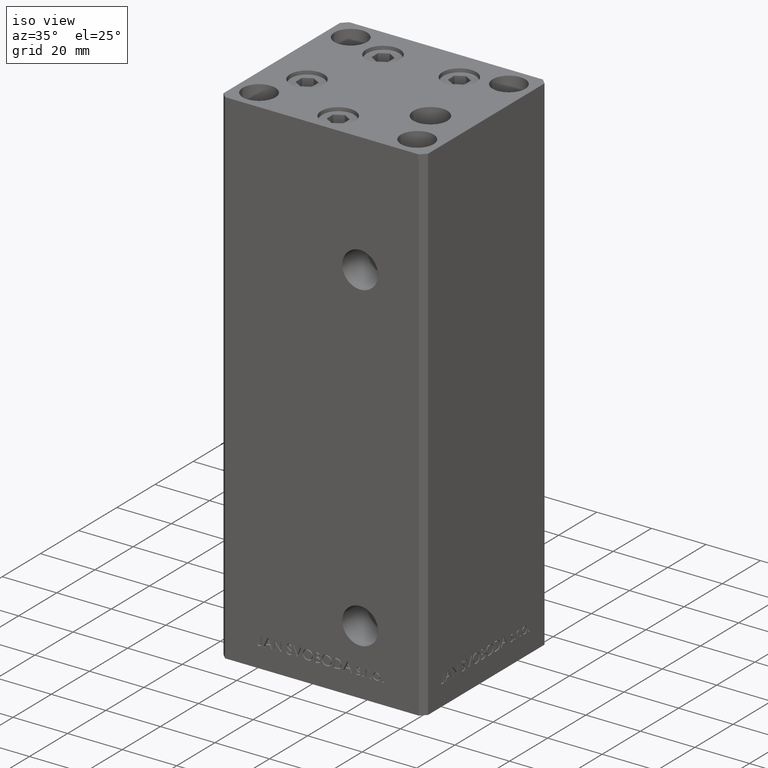
[diagram: clean part render]
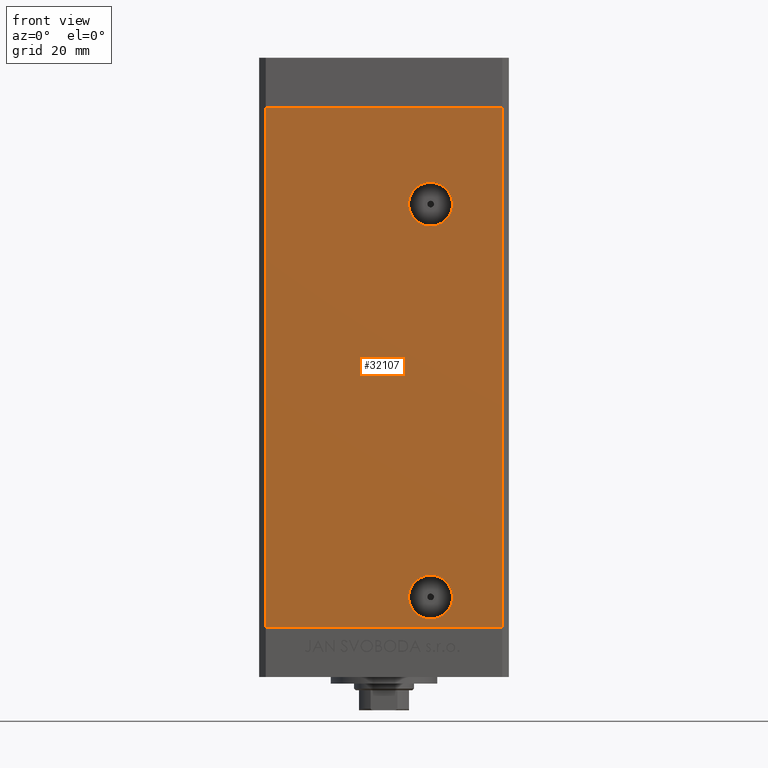
[diagram: tour spotlight — one face highlighted and labeled with its STEP entity id]
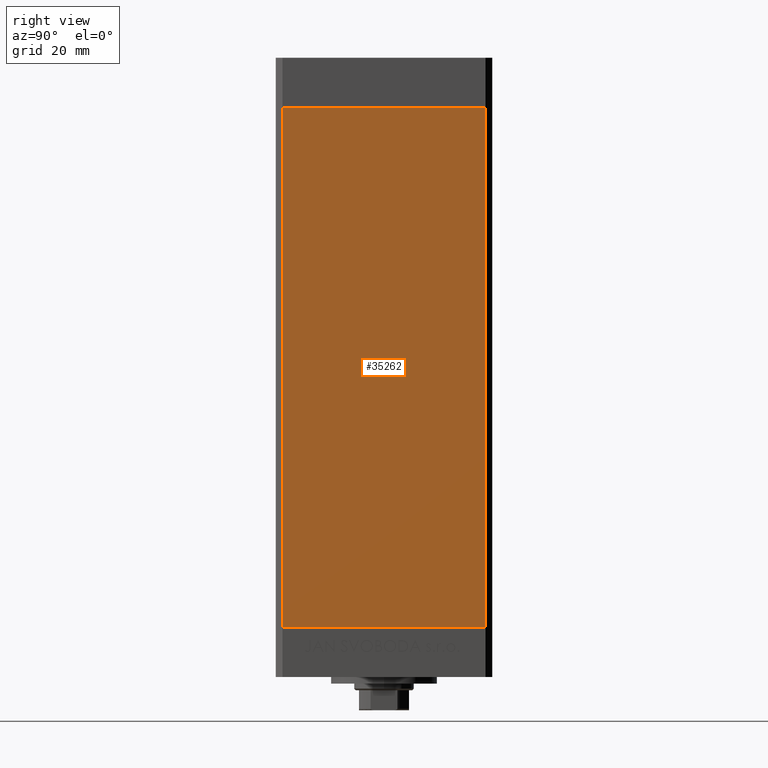
[diagram: tour spotlight — one face highlighted and labeled with its STEP entity id]
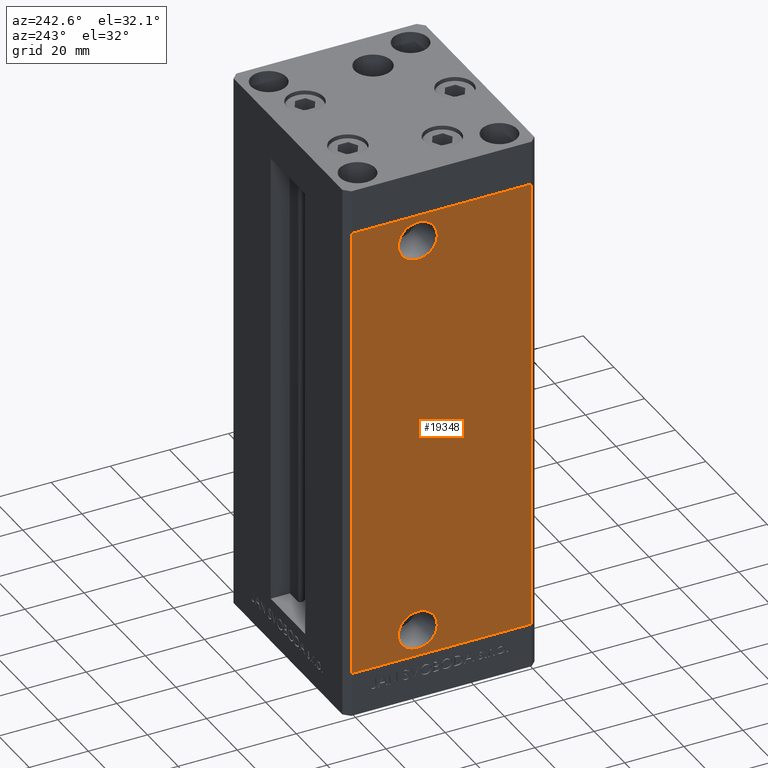
[diagram: tour spotlight — one face highlighted and labeled with its STEP entity id]
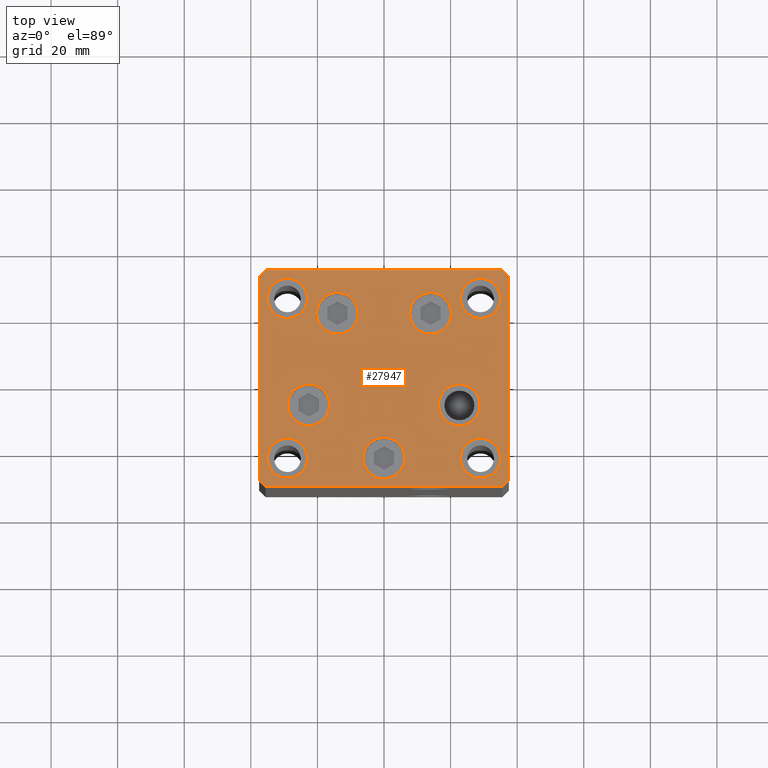
[diagram: tour spotlight — one face highlighted and labeled with its STEP entity id]
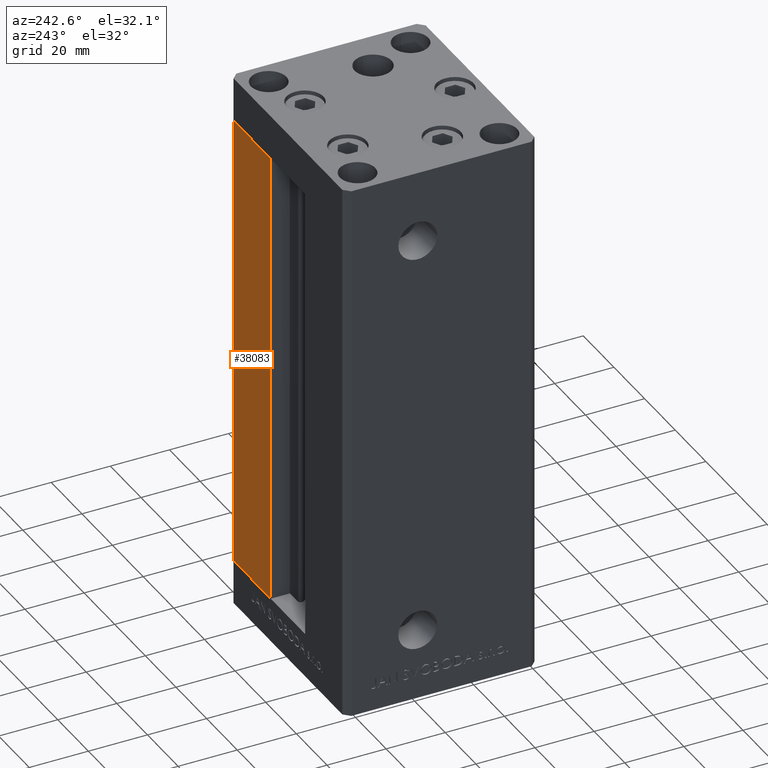
[diagram: tour spotlight — one face highlighted and labeled with its STEP entity id]
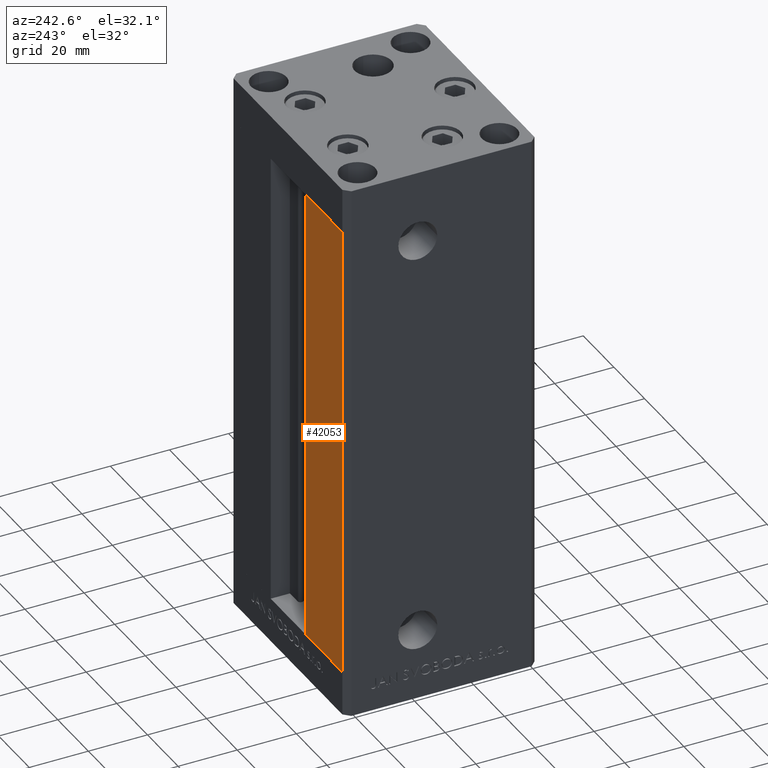
[diagram: tour spotlight — one face highlighted and labeled with its STEP entity id]
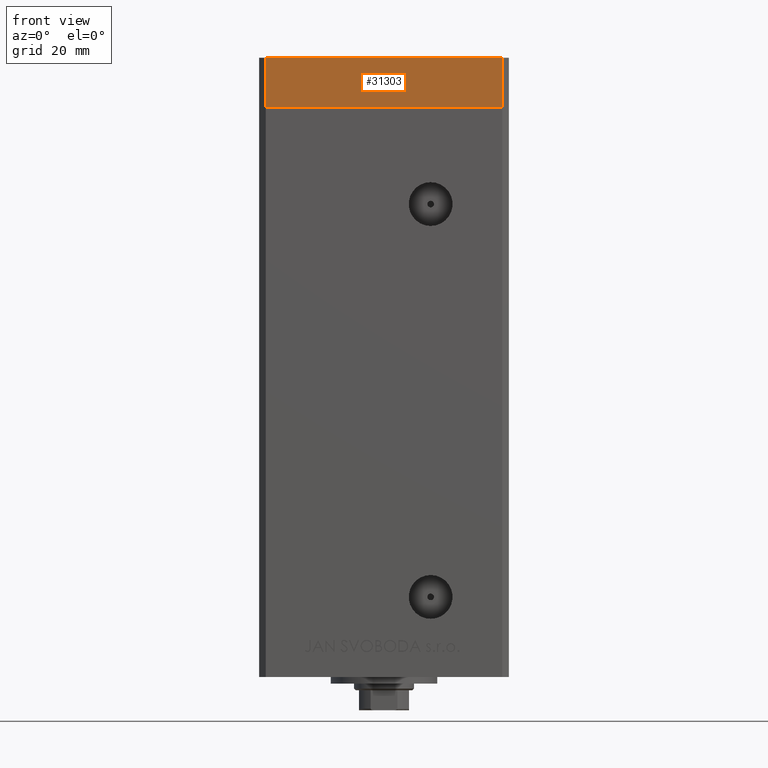
[diagram: tour spotlight — one face highlighted and labeled with its STEP entity id]
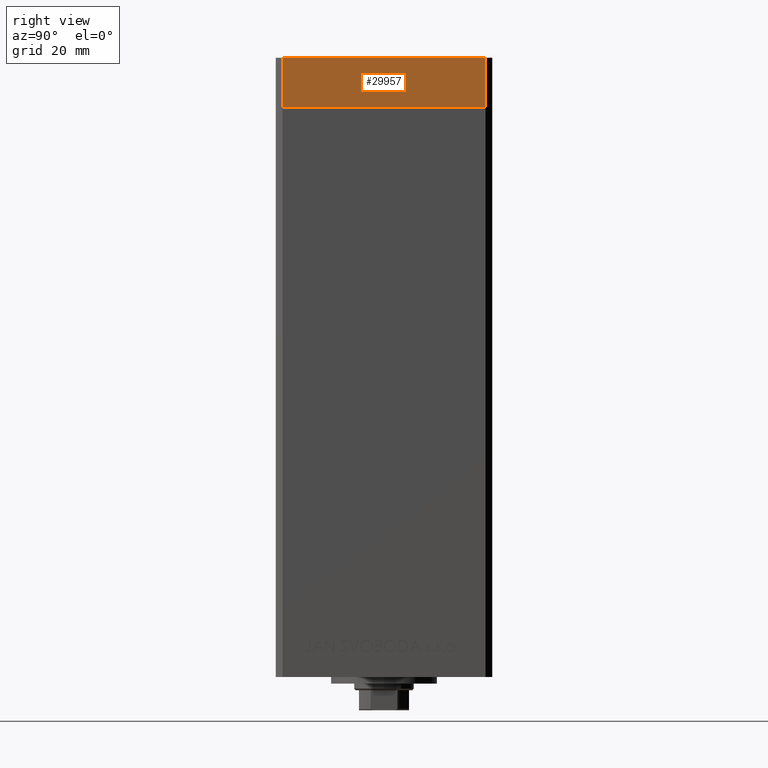
[diagram: tour spotlight — one face highlighted and labeled with its STEP entity id]
A machine part: a face-by-face anatomy tour. The part has 1179 B-rep faces; the first image is the clean iso view, then the 8 largest visible faces are spotlighted one at a time (largest first), each with its STEP entity span.

Face 1 — front view, entity #32107. In plain terms, the highlighted planar face has unit normal (0, 1, 0).
Definition (entity closure, byte-faithful):
#347 = DIRECTION ( 'NONE',  ( 1.000000000000000000, 0.000000000000000000, 0.000000000000000000 ) ) ;
#460 = VERTEX_POINT ( 'NONE', #21882 ) ;
#832 = VERTEX_POINT ( 'NONE', #2855 ) ;
#976 = EDGE_CURVE ( 'NONE', #37845, #25198, #21447, .T. ) ;
#1834 = ORIENTED_EDGE ( 'NONE', *, *, #29256, .F. ) ;
#2855 = CARTESIAN_POINT ( 'NONE',  ( 13.99999999999999112, -32.50000000000000000, 133.5800000000000125 ) ) ;
#3444 = CARTESIAN_POINT ( 'NONE',  ( 13.99999999999999112, -32.50000000000000000, 127.0000000000000000 ) ) ;
#4203 = AXIS2_PLACEMENT_3D ( 'NONE', #30937, #23134, #46517 ) ;
#4293 = DIRECTION ( 'NONE',  ( 0.000000000000000000, 1.000000000000000000, 0.000000000000000000 ) ) ;
#4713 = DIRECTION ( 'NONE',  ( 0.000000000000000000, 0.000000000000000000, -1.000000000000000000 ) ) ;
#4869 = LINE ( 'NONE', #38564, #26534 ) ;
#7868 = ORIENTED_EDGE ( 'NONE', *, *, #19832, .T. ) ;
#8997 = CARTESIAN_POINT ( 'NONE',  ( -35.49999999999999289, -32.50000000000000000, 156.0000000000000000 ) ) ;
#9189 = EDGE_CURVE ( 'NONE', #460, #37845, #46716, .T. ) ;
#11572 = EDGE_LOOP ( 'NONE', ( #41562, #46360, #15956, #47047 ) ) ;
#11581 = FACE_BOUND ( 'NONE', #16352, .T. ) ;
#12497 = DIRECTION ( 'NONE',  ( -0.000000000000000000, 1.000000000000000000, -0.000000000000000000 ) ) ;
#12526 = DIRECTION ( 'NONE',  ( -0.000000000000000000, -0.000000000000000000, -1.000000000000000000 ) ) ;
#12992 = CARTESIAN_POINT ( 'NONE',  ( 13.99999999999999112, -32.50000000000000000, 127.0000000000000000 ) ) ;
#14637 = DIRECTION ( 'NONE',  ( 0.000000000000000000, 0.000000000000000000, -1.000000000000000000 ) ) ;
#14728 = CARTESIAN_POINT ( 'NONE',  ( 13.99999999999999112, -32.50000000000000000, 120.4200000000000017 ) ) ;
#14761 = VERTEX_POINT ( 'NONE', #43666 ) ;
#15587 = VECTOR ( 'NONE', #347, 1000.000000000000000 ) ;
#15598 = FACE_BOUND ( 'NONE', #31224, .T. ) ;
#15771 = EDGE_CURVE ( 'NONE', #832, #19957, #36778, .T. ) ;
#15956 = ORIENTED_EDGE ( 'NONE', *, *, #26314, .F. ) ;
#16352 = EDGE_LOOP ( 'NONE', ( #1834, #37832 ) ) ;
#16735 = ORIENTED_EDGE ( 'NONE', *, *, #15771, .T. ) ;
#16850 = CARTESIAN_POINT ( 'NONE',  ( 35.49999999999999289, -32.50000000000000000, 0.000000000000000000 ) ) ;
#17694 = CARTESIAN_POINT ( 'NONE',  ( -35.49999999999999289, -32.50000000000000000, 0.000000000000000000 ) ) ;
#19452 = DIRECTION ( 'NONE',  ( 1.000000000000000000, 0.000000000000000000, 0.000000000000000000 ) ) ;
#19832 = EDGE_CURVE ( 'NONE', #19957, #832, #36885, .T. ) ;
#19957 = VERTEX_POINT ( 'NONE', #14728 ) ;
#20276 = VERTEX_POINT ( 'NONE', #47739 ) ;
#21404 = VECTOR ( 'NONE', #12526, 1000.000000000000000 ) ;
#21447 = LINE ( 'NONE', #17694, #15587 ) ;
#21542 = VECTOR ( 'NONE', #38166, 1000.000000000000000 ) ;
#21882 = CARTESIAN_POINT ( 'NONE',  ( -35.49999999999999289, -32.50000000000000000, 156.0000000000000000 ) ) ;
#23124 = DIRECTION ( 'NONE',  ( 0.000000000000000000, -0.000000000000000000, 1.000000000000000000 ) ) ;
#23134 = DIRECTION ( 'NONE',  ( 0.000000000000000000, -1.000000000000000000, 0.000000000000000000 ) ) ;
#25198 = VERTEX_POINT ( 'NONE', #16850 ) ;
#26314 = EDGE_CURVE ( 'NONE', #460, #40654, #4869, .T. ) ;
#26534 = VECTOR ( 'NONE', #19452, 1000.000000000000000 ) ;
#26597 = LINE ( 'NONE', #30378, #21542 ) ;
#27028 = CARTESIAN_POINT ( 'NONE',  ( 35.49999999999999289, -32.50000000000000000, 156.0000000000000000 ) ) ;
#28042 = AXIS2_PLACEMENT_3D ( 'NONE', #12992, #12497, #4713 ) ;
#29256 = EDGE_CURVE ( 'NONE', #14761, #20276, #44339, .T. ) ;
#30378 = CARTESIAN_POINT ( 'NONE',  ( 35.49999999999999289, -32.50000000000000000, 156.0000000000000000 ) ) ;
#30391 = AXIS2_PLACEMENT_3D ( 'NONE', #45303, #45557, #14637 ) ;
#30937 = CARTESIAN_POINT ( 'NONE',  ( 13.99999999999999112, -32.50000000000000000, 9.000000000000007105 ) ) ;
#31224 = EDGE_LOOP ( 'NONE', ( #7868, #16735 ) ) ;
#32107 = ADVANCED_FACE ( 'NONE', ( #11581, #46507, #15598 ), #42000, .F. ) ;
#34236 = CARTESIAN_POINT ( 'NONE',  ( -35.49999999999999289, -32.50000000000000000, 0.000000000000000000 ) ) ;
#36778 = CIRCLE ( 'NONE', #40004, 6.580000000000002736 ) ;
#36885 = CIRCLE ( 'NONE', #28042, 6.580000000000002736 ) ;
#37832 = ORIENTED_EDGE ( 'NONE', *, *, #45344, .F. ) ;
#37845 = VERTEX_POINT ( 'NONE', #34236 ) ;
#38166 = DIRECTION ( 'NONE',  ( -0.000000000000000000, -0.000000000000000000, -1.000000000000000000 ) ) ;
#38564 = CARTESIAN_POINT ( 'NONE',  ( -35.49999999999999289, -32.50000000000000000, 156.0000000000000000 ) ) ;
#38617 = DIRECTION ( 'NONE',  ( 0.000000000000000000, 0.000000000000000000, -1.000000000000000000 ) ) ;
#38887 = AXIS2_PLACEMENT_3D ( 'NONE', #42248, #4293, #23124 ) ;
#40004 = AXIS2_PLACEMENT_3D ( 'NONE', #3444, #46157, #38617 ) ;
#40654 = VERTEX_POINT ( 'NONE', #27028 ) ;
#41562 = ORIENTED_EDGE ( 'NONE', *, *, #976, .T. ) ;
#42000 = PLANE ( 'NONE',  #38887 ) ;
#42248 = CARTESIAN_POINT ( 'NONE',  ( -35.49999999999999289, -32.50000000000000000, 156.0000000000000000 ) ) ;
#42443 = CIRCLE ( 'NONE', #30391, 6.579999999999998295 ) ;
#42820 = EDGE_CURVE ( 'NONE', #40654, #25198, #26597, .T. ) ;
#43666 = CARTESIAN_POINT ( 'NONE',  ( 13.99999999999999112, -32.50000000000000000, 2.420000000000009699 ) ) ;
#44339 = CIRCLE ( 'NONE', #4203, 6.579999999999998295 ) ;
#45303 = CARTESIAN_POINT ( 'NONE',  ( 13.99999999999999112, -32.50000000000000000, 9.000000000000007105 ) ) ;
#45344 = EDGE_CURVE ( 'NONE', #20276, #14761, #42443, .T. ) ;
#45557 = DIRECTION ( 'NONE',  ( 0.000000000000000000, -1.000000000000000000, 0.000000000000000000 ) ) ;
#46157 = DIRECTION ( 'NONE',  ( -0.000000000000000000, 1.000000000000000000, -0.000000000000000000 ) ) ;
#46360 = ORIENTED_EDGE ( 'NONE', *, *, #42820, .F. ) ;
#46507 = FACE_OUTER_BOUND ( 'NONE', #11572, .T. ) ;
#46517 = DIRECTION ( 'NONE',  ( 0.000000000000000000, 0.000000000000000000, -1.000000000000000000 ) ) ;
#46716 = LINE ( 'NONE', #8997, #21404 ) ;
#47047 = ORIENTED_EDGE ( 'NONE', *, *, #9189, .T. ) ;
#47739 = CARTESIAN_POINT ( 'NONE',  ( 13.99999999999999112, -32.50000000000000000, 15.58000000000000718 ) ) ;

Face 2 — right view, entity #35262. In plain terms, the highlighted planar face has unit normal (1, -0, 0).
Definition (entity closure, byte-faithful):
#16 = EDGE_LOOP ( 'NONE', ( #34080, #22618, #6045, #27296 ) ) ;
#2001 = VERTEX_POINT ( 'NONE', #8416 ) ;
#2086 = VECTOR ( 'NONE', #10172, 1000.000000000000000 ) ;
#6045 = ORIENTED_EDGE ( 'NONE', *, *, #48051, .T. ) ;
#6652 = EDGE_CURVE ( 'NONE', #21677, #46539, #44119, .T. ) ;
#7765 = CARTESIAN_POINT ( 'NONE',  ( 37.49999999999999289, -30.50000000000000000, 156.0000000000000000 ) ) ;
#8011 = DIRECTION ( 'NONE',  ( -0.000000000000000000, -0.000000000000000000, -1.000000000000000000 ) ) ;
#8416 = CARTESIAN_POINT ( 'NONE',  ( 37.50000000000000711, 30.50000000000000000, 156.0000000000000000 ) ) ;
#8522 = DIRECTION ( 'NONE',  ( -2.275047181608927644E-16, -1.000000000000000000, 0.000000000000000000 ) ) ;
#9137 = DIRECTION ( 'NONE',  ( -0.000000000000000000, -0.000000000000000000, -1.000000000000000000 ) ) ;
#10172 = DIRECTION ( 'NONE',  ( -2.275047181608927644E-16, -1.000000000000000000, 0.000000000000000000 ) ) ;
#10360 = VECTOR ( 'NONE', #9137, 1000.000000000000000 ) ;
#13209 = DIRECTION ( 'NONE',  ( 1.000000000000000000, -2.275047181608927644E-16, 0.000000000000000000 ) ) ;
#15244 = CARTESIAN_POINT ( 'NONE',  ( 37.50000000000000711, 30.50000000000000000, 0.000000000000000000 ) ) ;
#17057 = CARTESIAN_POINT ( 'NONE',  ( 37.49999999999999289, -30.50000000000000000, 0.000000000000000000 ) ) ;
#17430 = LINE ( 'NONE', #47360, #10360 ) ;
#17637 = CARTESIAN_POINT ( 'NONE',  ( 37.49999999999999289, -30.50000000000000000, 156.0000000000000000 ) ) ;
#21232 = PLANE ( 'NONE',  #28549 ) ;
#21677 = VERTEX_POINT ( 'NONE', #15244 ) ;
#22618 = ORIENTED_EDGE ( 'NONE', *, *, #46855, .F. ) ;
#24999 = FACE_OUTER_BOUND ( 'NONE', #16, .T. ) ;
#27296 = ORIENTED_EDGE ( 'NONE', *, *, #34281, .T. ) ;
#28549 = AXIS2_PLACEMENT_3D ( 'NONE', #43630, #13209, #36578 ) ;
#29217 = VERTEX_POINT ( 'NONE', #17637 ) ;
#33549 = CARTESIAN_POINT ( 'NONE',  ( 37.50000000000000711, 30.50000000000000000, 0.000000000000000000 ) ) ;
#34080 = ORIENTED_EDGE ( 'NONE', *, *, #6652, .F. ) ;
#34281 = EDGE_CURVE ( 'NONE', #29217, #46539, #44981, .T. ) ;
#35262 = ADVANCED_FACE ( 'NONE', ( #24999 ), #21232, .T. ) ;
#36578 = DIRECTION ( 'NONE',  ( 2.275047181608927644E-16, 1.000000000000000000, 0.000000000000000000 ) ) ;
#36877 = VECTOR ( 'NONE', #8522, 1000.000000000000000 ) ;
#39183 = CARTESIAN_POINT ( 'NONE',  ( 37.50000000000000711, 30.50000000000000000, 156.0000000000000000 ) ) ;
#39749 = VECTOR ( 'NONE', #8011, 1000.000000000000000 ) ;
#42470 = LINE ( 'NONE', #39183, #36877 ) ;
#43630 = CARTESIAN_POINT ( 'NONE',  ( 37.50000000000000711, 30.50000000000000000, 156.0000000000000000 ) ) ;
#44119 = LINE ( 'NONE', #33549, #2086 ) ;
#44981 = LINE ( 'NONE', #7765, #39749 ) ;
#46539 = VERTEX_POINT ( 'NONE', #17057 ) ;
#46855 = EDGE_CURVE ( 'NONE', #2001, #21677, #17430, .T. ) ;
#47360 = CARTESIAN_POINT ( 'NONE',  ( 37.50000000000000711, 30.50000000000000000, 156.0000000000000000 ) ) ;
#48051 = EDGE_CURVE ( 'NONE', #2001, #29217, #42470, .T. ) ;

Face 3 — auxiliary view, entity #19348. In plain terms, the highlighted planar face has unit normal (1, 0, 0).
Definition (entity closure, byte-faithful):
#969 = DIRECTION ( 'NONE',  ( 0.000000000000000000, -1.000000000000000000, 0.000000000000000000 ) ) ;
#1110 = DIRECTION ( 'NONE',  ( -0.000000000000000000, -0.000000000000000000, -1.000000000000000000 ) ) ;
#1561 = VERTEX_POINT ( 'NONE', #6519 ) ;
#2123 = CARTESIAN_POINT ( 'NONE',  ( -37.50000000000000711, 30.50000000000000000, 156.0000000000000000 ) ) ;
#2382 = CARTESIAN_POINT ( 'NONE',  ( -37.50000000000000000, 7.999999999999991118, 147.0000000000000000 ) ) ;
#2891 = VERTEX_POINT ( 'NONE', #11716 ) ;
#3369 = VERTEX_POINT ( 'NONE', #7808 ) ;
#4651 = ORIENTED_EDGE ( 'NONE', *, *, #12740, .F. ) ;
#4817 = EDGE_CURVE ( 'NONE', #30054, #42766, #21261, .T. ) ;
#5248 = AXIS2_PLACEMENT_3D ( 'NONE', #32504, #47836, #10120 ) ;
#5368 = VERTEX_POINT ( 'NONE', #16561 ) ;
#6519 = CARTESIAN_POINT ( 'NONE',  ( -37.50000000000000000, 14.58000000000000718, 147.0000000000000000 ) ) ;
#7219 = AXIS2_PLACEMENT_3D ( 'NONE', #48142, #25245, #25750 ) ;
#7808 = CARTESIAN_POINT ( 'NONE',  ( -37.50000000000000711, 30.50000000000000000, 0.000000000000000000 ) ) ;
#7928 = VECTOR ( 'NONE', #8443, 1000.000000000000000 ) ;
#8443 = DIRECTION ( 'NONE',  ( -0.000000000000000000, -0.000000000000000000, -1.000000000000000000 ) ) ;
#9527 = VECTOR ( 'NONE', #45882, 1000.000000000000000 ) ;
#9935 = FACE_OUTER_BOUND ( 'NONE', #46378, .T. ) ;
#9992 = ORIENTED_EDGE ( 'NONE', *, *, #20513, .F. ) ;
#10120 = DIRECTION ( 'NONE',  ( 0.000000000000000000, -1.000000000000000000, 0.000000000000000000 ) ) ;
#10437 = FACE_BOUND ( 'NONE', #41205, .T. ) ;
#11012 = ORIENTED_EDGE ( 'NONE', *, *, #46629, .T. ) ;
#11716 = CARTESIAN_POINT ( 'NONE',  ( -37.49999999999999289, -30.50000000000000000, 0.000000000000000000 ) ) ;
#12405 = LINE ( 'NONE', #16921, #24007 ) ;
#12740 = EDGE_CURVE ( 'NONE', #42766, #30054, #29441, .T. ) ;
#13681 = LINE ( 'NONE', #2123, #19053 ) ;
#13938 = DIRECTION ( 'NONE',  ( -1.000000000000000000, -2.275047181608927644E-16, 0.000000000000000000 ) ) ;
#15187 = CARTESIAN_POINT ( 'NONE',  ( -37.50000000000000000, 1.419999999999975948, 147.0000000000000000 ) ) ;
#15750 = CIRCLE ( 'NONE', #43050, 6.580000000000015170 ) ;
#16561 = CARTESIAN_POINT ( 'NONE',  ( -37.50000000000000711, 30.50000000000000000, 156.0000000000000000 ) ) ;
#16864 = CIRCLE ( 'NONE', #21647, 6.580000000000015170 ) ;
#16919 = EDGE_CURVE ( 'NONE', #5368, #3369, #42882, .T. ) ;
#16921 = CARTESIAN_POINT ( 'NONE',  ( -37.49999999999999289, -30.50000000000000000, 156.0000000000000000 ) ) ;
#17377 = EDGE_LOOP ( 'NONE', ( #4651, #48166 ) ) ;
#17812 = VERTEX_POINT ( 'NONE', #15187 ) ;
#19053 = VECTOR ( 'NONE', #33532, 1000.000000000000000 ) ;
#19348 = ADVANCED_FACE ( 'NONE', ( #25496, #10437, #9935 ), #25997, .F. ) ;
#19952 = CARTESIAN_POINT ( 'NONE',  ( -37.50000000000000711, 30.50000000000000000, 0.000000000000000000 ) ) ;
#20036 = CARTESIAN_POINT ( 'NONE',  ( -37.50000000000000000, 7.999999999999991118, 147.0000000000000000 ) ) ;
#20513 = EDGE_CURVE ( 'NONE', #1561, #17812, #16864, .T. ) ;
#21261 = CIRCLE ( 'NONE', #5248, 6.580000000000002736 ) ;
#21647 = AXIS2_PLACEMENT_3D ( 'NONE', #20036, #43166, #969 ) ;
#24004 = CARTESIAN_POINT ( 'NONE',  ( -37.50000000000000711, 30.50000000000000000, 156.0000000000000000 ) ) ;
#24007 = VECTOR ( 'NONE', #1110, 1000.000000000000000 ) ;
#25131 = ORIENTED_EDGE ( 'NONE', *, *, #39557, .F. ) ;
#25245 = DIRECTION ( 'NONE',  ( 1.000000000000000000, 2.275047181608927644E-16, -0.000000000000000000 ) ) ;
#25496 = FACE_BOUND ( 'NONE', #17377, .T. ) ;
#25750 = DIRECTION ( 'NONE',  ( -2.275047181608927644E-16, 1.000000000000000000, 0.000000000000000000 ) ) ;
#25997 = PLANE ( 'NONE',  #7219 ) ;
#29257 = DIRECTION ( 'NONE',  ( 0.000000000000000000, -1.000000000000000000, 0.000000000000000000 ) ) ;
#29441 = CIRCLE ( 'NONE', #46325, 6.580000000000002736 ) ;
#30054 = VERTEX_POINT ( 'NONE', #37301 ) ;
#30545 = LINE ( 'NONE', #19952, #9527 ) ;
#31218 = DIRECTION ( 'NONE',  ( -1.000000000000000000, -2.275047181608927644E-16, 0.000000000000000000 ) ) ;
#32504 = CARTESIAN_POINT ( 'NONE',  ( -37.50000000000000000, 7.999999999999977796, 9.000000000000007105 ) ) ;
#32733 = CARTESIAN_POINT ( 'NONE',  ( -37.49999999999999289, -30.50000000000000000, 156.0000000000000000 ) ) ;
#33532 = DIRECTION ( 'NONE',  ( 2.275047181608927644E-16, -1.000000000000000000, 0.000000000000000000 ) ) ;
#33654 = CARTESIAN_POINT ( 'NONE',  ( -37.50000000000000000, 1.419999999999975060, 9.000000000000007105 ) ) ;
#37301 = CARTESIAN_POINT ( 'NONE',  ( -37.50000000000000000, 14.57999999999998053, 9.000000000000007105 ) ) ;
#37443 = EDGE_CURVE ( 'NONE', #17812, #1561, #15750, .T. ) ;
#37682 = VERTEX_POINT ( 'NONE', #32733 ) ;
#39557 = EDGE_CURVE ( 'NONE', #5368, #37682, #13681, .T. ) ;
#40923 = ORIENTED_EDGE ( 'NONE', *, *, #45104, .F. ) ;
#40939 = ORIENTED_EDGE ( 'NONE', *, *, #37443, .F. ) ;
#41205 = EDGE_LOOP ( 'NONE', ( #40939, #9992 ) ) ;
#42766 = VERTEX_POINT ( 'NONE', #33654 ) ;
#42777 = ORIENTED_EDGE ( 'NONE', *, *, #16919, .T. ) ;
#42778 = DIRECTION ( 'NONE',  ( 0.000000000000000000, -1.000000000000000000, 0.000000000000000000 ) ) ;
#42882 = LINE ( 'NONE', #24004, #7928 ) ;
#43050 = AXIS2_PLACEMENT_3D ( 'NONE', #2382, #13938, #29257 ) ;
#43166 = DIRECTION ( 'NONE',  ( -1.000000000000000000, -2.275047181608927644E-16, 0.000000000000000000 ) ) ;
#45104 = EDGE_CURVE ( 'NONE', #37682, #2891, #12405, .T. ) ;
#45882 = DIRECTION ( 'NONE',  ( 2.275047181608927644E-16, -1.000000000000000000, 0.000000000000000000 ) ) ;
#46325 = AXIS2_PLACEMENT_3D ( 'NONE', #49320, #31218, #42778 ) ;
#46378 = EDGE_LOOP ( 'NONE', ( #11012, #40923, #25131, #42777 ) ) ;
#46629 = EDGE_CURVE ( 'NONE', #3369, #2891, #30545, .T. ) ;
#47836 = DIRECTION ( 'NONE',  ( -1.000000000000000000, -2.275047181608927644E-16, 0.000000000000000000 ) ) ;
#48142 = CARTESIAN_POINT ( 'NONE',  ( -37.50000000000000711, 30.50000000000000000, 156.0000000000000000 ) ) ;
#48166 = ORIENTED_EDGE ( 'NONE', *, *, #4817, .F. ) ;
#49320 = CARTESIAN_POINT ( 'NONE',  ( -37.50000000000000000, 7.999999999999977796, 9.000000000000007105 ) ) ;

Face 4 — top view, entity #27947. In plain terms, the highlighted planar face has unit normal (0, 0, 1).
Definition (entity closure, byte-faithful):
#28 = CARTESIAN_POINT ( 'NONE',  ( 35.00000000000001421, -23.99999999999999289, 0.000000000000000000 ) ) ;
#369 = VERTEX_POINT ( 'NONE', #23670 ) ;
#436 = DIRECTION ( 'NONE',  ( 0.000000000000000000, -0.000000000000000000, -1.000000000000000000 ) ) ;
#485 = CIRCLE ( 'NONE', #30179, 6.000000000000005329 ) ;
#1151 = CARTESIAN_POINT ( 'NONE',  ( -35.50000000000002842, 32.49999999999999289, 0.000000000000000000 ) ) ;
#1268 = CIRCLE ( 'NONE', #21289, 5.999999999999998224 ) ;
#1540 = ORIENTED_EDGE ( 'NONE', *, *, #10077, .T. ) ;
#1600 = DIRECTION ( 'NONE',  ( 0.000000000000000000, 0.000000000000000000, 1.000000000000000000 ) ) ;
#1819 = LINE ( 'NONE', #17141, #45135 ) ;
#2046 = CARTESIAN_POINT ( 'NONE',  ( 20.24106857963322526, 19.50000000000000000, 0.000000000000000000 ) ) ;
#2277 = LINE ( 'NONE', #48512, #7723 ) ;
#2753 = CARTESIAN_POINT ( 'NONE',  ( -37.49999999999998579, -30.50000000000001421, 0.000000000000000000 ) ) ;
#2786 = DIRECTION ( 'NONE',  ( 0.000000000000000000, -0.000000000000000000, -1.000000000000000000 ) ) ;
#2828 = CARTESIAN_POINT ( 'NONE',  ( 29.00000000000001066, 24.00000000000000711, 0.000000000000000000 ) ) ;
#3016 = CIRCLE ( 'NONE', #21436, 6.250000000000001776 ) ;
#3158 = CIRCLE ( 'NONE', #41701, 6.250000000000000000 ) ;
#3220 = FACE_OUTER_BOUND ( 'NONE', #29865, .T. ) ;
#3474 = FACE_BOUND ( 'NONE', #35842, .T. ) ;
#3542 = ORIENTED_EDGE ( 'NONE', *, *, #7334, .T. ) ;
#3588 = DIRECTION ( 'NONE',  ( 1.000000000000000000, 0.000000000000000000, 0.000000000000000000 ) ) ;
#3973 = VERTEX_POINT ( 'NONE', #23888 ) ;
#4419 = DIRECTION ( 'NONE',  ( 1.000000000000000000, 0.000000000000000000, 0.000000000000000000 ) ) ;
#4534 = DIRECTION ( 'NONE',  ( 1.000000000000000000, 9.773090005503140331E-17, 0.000000000000000000 ) ) ;
#5245 = DIRECTION ( 'NONE',  ( 1.000000000000000000, 0.000000000000000000, 0.000000000000000000 ) ) ;
#5322 = VECTOR ( 'NONE', #39042, 999.9999999999998863 ) ;
#5348 = DIRECTION ( 'NONE',  ( -0.7071067811865426878, -0.7071067811865524577, 0.000000000000000000 ) ) ;
#5576 = EDGE_LOOP ( 'NONE', ( #43787, #44696 ) ) ;
#6007 = CARTESIAN_POINT ( 'NONE',  ( -6.249999999999997335, -24.00000000000000000, 0.000000000000000000 ) ) ;
#6055 = EDGE_CURVE ( 'NONE', #44710, #14344, #10079, .T. ) ;
#6359 = CARTESIAN_POINT ( 'NONE',  ( -16.37741699796951877, -8.000000000000005329, 0.000000000000000000 ) ) ;
#6501 = PLANE ( 'NONE',  #41910 ) ;
#6730 = VERTEX_POINT ( 'NONE', #2753 ) ;
#6778 = DIRECTION ( 'NONE',  ( 0.000000000000000000, 0.000000000000000000, 1.000000000000000000 ) ) ;
#6925 = CARTESIAN_POINT ( 'NONE',  ( 29.00000000000001066, 24.00000000000000711, 0.000000000000000000 ) ) ;
#7043 = ORIENTED_EDGE ( 'NONE', *, *, #24820, .T. ) ;
#7250 = ORIENTED_EDGE ( 'NONE', *, *, #10833, .F. ) ;
#7313 = ORIENTED_EDGE ( 'NONE', *, *, #48524, .T. ) ;
#7334 = EDGE_CURVE ( 'NONE', #369, #10997, #42331, .T. ) ;
#7723 = VECTOR ( 'NONE', #21612, 1000.000000000000000 ) ;
#7816 = EDGE_CURVE ( 'NONE', #44213, #44458, #29416, .T. ) ;
#8364 = VERTEX_POINT ( 'NONE', #6359 ) ;
#8373 = CARTESIAN_POINT ( 'NONE',  ( 37.49999999999992184, 30.50000000000001066, 0.000000000000000000 ) ) ;
#8655 = EDGE_LOOP ( 'NONE', ( #19245, #45559 ) ) ;
#8693 = DIRECTION ( 'NONE',  ( 1.000000000000000000, 0.000000000000000000, 0.000000000000000000 ) ) ;
#9046 = LINE ( 'NONE', #31930, #18181 ) ;
#9472 = CARTESIAN_POINT ( 'NONE',  ( 7.741068579633223479, 19.50000000000000000, 0.000000000000000000 ) ) ;
#9699 = EDGE_CURVE ( 'NONE', #48034, #40131, #30293, .T. ) ;
#9950 = CARTESIAN_POINT ( 'NONE',  ( -20.24106857963322881, 19.49999999999999645, 0.000000000000000000 ) ) ;
#10077 = EDGE_CURVE ( 'NONE', #32547, #6730, #2277, .T. ) ;
#10079 = CIRCLE ( 'NONE', #38188, 6.250000000000000000 ) ;
#10197 = EDGE_CURVE ( 'NONE', #14344, #44710, #43846, .T. ) ;
#10354 = DIRECTION ( 'NONE',  ( -1.000000000000000000, -1.954618001100629052E-16, 0.000000000000000000 ) ) ;
#10757 = FACE_BOUND ( 'NONE', #5576, .T. ) ;
#10794 = VERTEX_POINT ( 'NONE', #45628 ) ;
#10828 = VERTEX_POINT ( 'NONE', #22737 ) ;
#10833 = EDGE_CURVE ( 'NONE', #26858, #31825, #31908, .T. ) ;
#10943 = DIRECTION ( 'NONE',  ( 0.000000000000000000, 0.000000000000000000, 1.000000000000000000 ) ) ;
#10997 = VERTEX_POINT ( 'NONE', #23955 ) ;
#11008 = FACE_BOUND ( 'NONE', #31836, .T. ) ;
#11440 = DIRECTION ( 'NONE',  ( 1.000000000000000000, 0.000000000000000000, 0.000000000000000000 ) ) ;
#11449 = DIRECTION ( 'NONE',  ( 1.000000000000000000, 0.000000000000000000, 0.000000000000000000 ) ) ;
#11848 = EDGE_CURVE ( 'NONE', #6730, #10828, #39807, .T. ) ;
#12011 = ORIENTED_EDGE ( 'NONE', *, *, #34265, .F. ) ;
#12094 = DIRECTION ( 'NONE',  ( -1.478780668045802821E-15, 1.000000000000000000, 0.000000000000000000 ) ) ;
#12984 = DIRECTION ( 'NONE',  ( 0.000000000000000000, 0.000000000000000000, 1.000000000000000000 ) ) ;
#13132 = LINE ( 'NONE', #37000, #44997 ) ;
#13570 = EDGE_CURVE ( 'NONE', #30590, #10794, #16645, .T. ) ;
#13626 = LINE ( 'NONE', #44792, #27320 ) ;
#13869 = AXIS2_PLACEMENT_3D ( 'NONE', #31126, #33925, #38432 ) ;
#13910 = DIRECTION ( 'NONE',  ( 0.7071067811865474617, -0.7071067811865474617, 0.000000000000000000 ) ) ;
#13955 = EDGE_LOOP ( 'NONE', ( #27620, #18380 ) ) ;
#14034 = CARTESIAN_POINT ( 'NONE',  ( -29.00000000000001066, -23.99999999999999289, 0.000000000000000000 ) ) ;
#14040 = VERTEX_POINT ( 'NONE', #29353 ) ;
#14344 = VERTEX_POINT ( 'NONE', #9950 ) ;
#14370 = CARTESIAN_POINT ( 'NONE',  ( 16.37741699796951877, -8.000000000000000000, 0.000000000000000000 ) ) ;
#14513 = EDGE_CURVE ( 'NONE', #20307, #42622, #48003, .T. ) ;
#14584 = CARTESIAN_POINT ( 'NONE',  ( -13.99106857963322703, 19.49999999999999645, 0.000000000000000000 ) ) ;
#14710 = CARTESIAN_POINT ( 'NONE',  ( -29.00000000000001066, 24.00000000000000711, 0.000000000000000000 ) ) ;
#15025 = FACE_BOUND ( 'NONE', #15910, .T. ) ;
#15464 = DIRECTION ( 'NONE',  ( 0.000000000000000000, -0.000000000000000000, -1.000000000000000000 ) ) ;
#15910 = EDGE_LOOP ( 'NONE', ( #19999, #30735 ) ) ;
#16219 = DIRECTION ( 'NONE',  ( 0.000000000000000000, -0.000000000000000000, -1.000000000000000000 ) ) ;
#16645 = CIRCLE ( 'NONE', #19833, 6.000000000000005329 ) ;
#16657 = CARTESIAN_POINT ( 'NONE',  ( -35.00000000000000711, -23.99999999999999289, 0.000000000000000000 ) ) ;
#16822 = ORIENTED_EDGE ( 'NONE', *, *, #49124, .F. ) ;
#17141 = CARTESIAN_POINT ( 'NONE',  ( 35.50000000000000711, -32.50000000000000711, 0.000000000000000000 ) ) ;
#18181 = VECTOR ( 'NONE', #12094, 1000.000000000000000 ) ;
#18297 = DIRECTION ( 'NONE',  ( 1.000000000000000000, 0.000000000000000000, 0.000000000000000000 ) ) ;
#18380 = ORIENTED_EDGE ( 'NONE', *, *, #13570, .F. ) ;
#19122 = CARTESIAN_POINT ( 'NONE',  ( -35.49999999999998579, -32.50000000000001421, 0.000000000000000000 ) ) ;
#19245 = ORIENTED_EDGE ( 'NONE', *, *, #30373, .T. ) ;
#19833 = AXIS2_PLACEMENT_3D ( 'NONE', #6925, #10943, #38086 ) ;
#19972 = DIRECTION ( 'NONE',  ( 1.000000000000000000, 0.000000000000000000, 0.000000000000000000 ) ) ;
#19999 = ORIENTED_EDGE ( 'NONE', *, *, #9699, .F. ) ;
#20284 = DIRECTION ( 'NONE',  ( 0.000000000000000000, -0.000000000000000000, -1.000000000000000000 ) ) ;
#20307 = VERTEX_POINT ( 'NONE', #35941 ) ;
#20406 = DIRECTION ( 'NONE',  ( 0.7071067811865487940, 0.7071067811865463515, 0.000000000000000000 ) ) ;
#20524 = ORIENTED_EDGE ( 'NONE', *, *, #27977, .F. ) ;
#20532 = EDGE_CURVE ( 'NONE', #44458, #44213, #32106, .T. ) ;
#21289 = AXIS2_PLACEMENT_3D ( 'NONE', #25857, #6778, #26359 ) ;
#21339 = CARTESIAN_POINT ( 'NONE',  ( 23.00000000000001066, -23.99999999999999289, 0.000000000000000000 ) ) ;
#21436 = AXIS2_PLACEMENT_3D ( 'NONE', #28352, #43695, #5245 ) ;
#21612 = DIRECTION ( 'NONE',  ( 4.550094363217855288E-16, -1.000000000000000000, 0.000000000000000000 ) ) ;
#22048 = FACE_BOUND ( 'NONE', #8655, .T. ) ;
#22737 = CARTESIAN_POINT ( 'NONE',  ( -35.49999999999998579, -32.50000000000001421, 0.000000000000000000 ) ) ;
#22784 = EDGE_LOOP ( 'NONE', ( #16822, #20524 ) ) ;
#22988 = VECTOR ( 'NONE', #13910, 1000.000000000000114 ) ;
#23487 = EDGE_LOOP ( 'NONE', ( #24672, #38404 ) ) ;
#23670 = CARTESIAN_POINT ( 'NONE',  ( 37.49999999999992184, 30.50000000000001066, 0.000000000000000000 ) ) ;
#23888 = CARTESIAN_POINT ( 'NONE',  ( 37.50000000000001421, -30.50000000000000711, 0.000000000000000000 ) ) ;
#23955 = CARTESIAN_POINT ( 'NONE',  ( 35.49999999999992184, 32.50000000000000711, 0.000000000000000000 ) ) ;
#24187 = CIRCLE ( 'NONE', #33874, 5.999999999999998224 ) ;
#24421 = VERTEX_POINT ( 'NONE', #1151 ) ;
#24672 = ORIENTED_EDGE ( 'NONE', *, *, #20532, .T. ) ;
#24779 = EDGE_CURVE ( 'NONE', #10997, #24421, #13626, .T. ) ;
#24794 = CIRCLE ( 'NONE', #44917, 6.250000000000001776 ) ;
#24820 = EDGE_CURVE ( 'NONE', #24421, #32547, #13132, .T. ) ;
#25067 = CARTESIAN_POINT ( 'NONE',  ( -35.00000000000000711, 24.00000000000000711, 0.000000000000000000 ) ) ;
#25232 = AXIS2_PLACEMENT_3D ( 'NONE', #27140, #27630, #46264 ) ;
#25291 = CARTESIAN_POINT ( 'NONE',  ( 23.00000000000001066, 24.00000000000000711, 0.000000000000000000 ) ) ;
#25464 = CARTESIAN_POINT ( 'NONE',  ( -28.87741699796952233, -8.000000000000005329, 0.000000000000000000 ) ) ;
#25857 = CARTESIAN_POINT ( 'NONE',  ( -29.00000000000001066, 24.00000000000000711, 0.000000000000000000 ) ) ;
#26259 = CARTESIAN_POINT ( 'NONE',  ( -22.62741699796951877, -8.000000000000005329, 0.000000000000000000 ) ) ;
#26327 = AXIS2_PLACEMENT_3D ( 'NONE', #30301, #15464, #11449 ) ;
#26359 = DIRECTION ( 'NONE',  ( 1.000000000000000000, 0.000000000000000000, 0.000000000000000000 ) ) ;
#26509 = AXIS2_PLACEMENT_3D ( 'NONE', #39396, #20284, #43426 ) ;
#26580 = CARTESIAN_POINT ( 'NONE',  ( 0.000000000000000000, 0.000000000000000000, 0.000000000000000000 ) ) ;
#26858 = VERTEX_POINT ( 'NONE', #25067 ) ;
#27140 = CARTESIAN_POINT ( 'NONE',  ( 29.00000000000001066, -23.99999999999999289, 0.000000000000000000 ) ) ;
#27199 = CARTESIAN_POINT ( 'NONE',  ( -23.00000000000001421, 24.00000000000000711, 0.000000000000000000 ) ) ;
#27255 = ORIENTED_EDGE ( 'NONE', *, *, #6055, .T. ) ;
#27320 = VECTOR ( 'NONE', #10354, 1000.000000000000000 ) ;
#27620 = ORIENTED_EDGE ( 'NONE', *, *, #35628, .F. ) ;
#27630 = DIRECTION ( 'NONE',  ( 0.000000000000000000, 0.000000000000000000, 1.000000000000000000 ) ) ;
#27807 = ORIENTED_EDGE ( 'NONE', *, *, #32117, .T. ) ;
#27947 = ADVANCED_FACE ( 'NONE', ( #33893, #22048, #30360, #10757, #3474, #15025, #45699, #11008, #48461, #3220 ), #6501, .T. ) ;
#27977 = EDGE_CURVE ( 'NONE', #44269, #29985, #24187, .T. ) ;
#28352 = CARTESIAN_POINT ( 'NONE',  ( -22.62741699796951877, -8.000000000000005329, 0.000000000000000000 ) ) ;
#28469 = DIRECTION ( 'NONE',  ( 1.000000000000000000, 0.000000000000000000, 0.000000000000000000 ) ) ;
#28707 = VERTEX_POINT ( 'NONE', #25464 ) ;
#29043 = EDGE_CURVE ( 'NONE', #14040, #3973, #1819, .T. ) ;
#29353 = CARTESIAN_POINT ( 'NONE',  ( 35.50000000000000711, -32.50000000000000711, 0.000000000000000000 ) ) ;
#29415 = DIRECTION ( 'NONE',  ( 1.000000000000000000, 0.000000000000000000, 0.000000000000000000 ) ) ;
#29416 = CIRCLE ( 'NONE', #48684, 6.250000000000001776 ) ;
#29467 = ORIENTED_EDGE ( 'NONE', *, *, #24779, .T. ) ;
#29858 = DIRECTION ( 'NONE',  ( 0.000000000000000000, 0.000000000000000000, 1.000000000000000000 ) ) ;
#29865 = EDGE_LOOP ( 'NONE', ( #30274, #27807, #47013, #36790, #3542, #29467, #7043, #1540 ) ) ;
#29985 = VERTEX_POINT ( 'NONE', #43860 ) ;
#30039 = DIRECTION ( 'NONE',  ( 1.000000000000000000, 0.000000000000000000, 0.000000000000000000 ) ) ;
#30179 = AXIS2_PLACEMENT_3D ( 'NONE', #2828, #45815, #3588 ) ;
#30274 = ORIENTED_EDGE ( 'NONE', *, *, #11848, .T. ) ;
#30286 = CIRCLE ( 'NONE', #32683, 6.250000000000000000 ) ;
#30293 = CIRCLE ( 'NONE', #31864, 6.000000000000005329 ) ;
#30301 = CARTESIAN_POINT ( 'NONE',  ( 2.939152317953647500E-15, -24.00000000000000000, 0.000000000000000000 ) ) ;
#30360 = FACE_BOUND ( 'NONE', #23487, .T. ) ;
#30373 = EDGE_CURVE ( 'NONE', #33517, #47139, #39564, .T. ) ;
#30495 = CIRCLE ( 'NONE', #36917, 5.999999999999998224 ) ;
#30544 = DIRECTION ( 'NONE',  ( 0.000000000000000000, -0.000000000000000000, -1.000000000000000000 ) ) ;
#30590 = VERTEX_POINT ( 'NONE', #25291 ) ;
#30735 = ORIENTED_EDGE ( 'NONE', *, *, #32124, .F. ) ;
#30814 = DIRECTION ( 'NONE',  ( 0.000000000000000000, -0.000000000000000000, -1.000000000000000000 ) ) ;
#31126 = CARTESIAN_POINT ( 'NONE',  ( 13.99106857963322348, 19.50000000000000000, 0.000000000000000000 ) ) ;
#31577 = CARTESIAN_POINT ( 'NONE',  ( 22.62741699796951877, -8.000000000000000000, 0.000000000000000000 ) ) ;
#31749 = ORIENTED_EDGE ( 'NONE', *, *, #10197, .T. ) ;
#31825 = VERTEX_POINT ( 'NONE', #27199 ) ;
#31836 = EDGE_LOOP ( 'NONE', ( #12011, #7250 ) ) ;
#31864 = AXIS2_PLACEMENT_3D ( 'NONE', #47584, #1600, #28469 ) ;
#31908 = CIRCLE ( 'NONE', #48644, 5.999999999999998224 ) ;
#31930 = CARTESIAN_POINT ( 'NONE',  ( 37.50000000000001421, -30.50000000000000711, 0.000000000000000000 ) ) ;
#32106 = CIRCLE ( 'NONE', #26509, 6.250000000000001776 ) ;
#32117 = EDGE_CURVE ( 'NONE', #10828, #14040, #35203, .T. ) ;
#32124 = EDGE_CURVE ( 'NONE', #40131, #48034, #37281, .T. ) ;
#32519 = CARTESIAN_POINT ( 'NONE',  ( -37.49999999999998579, -30.50000000000001421, 0.000000000000000000 ) ) ;
#32547 = VERTEX_POINT ( 'NONE', #36306 ) ;
#32683 = AXIS2_PLACEMENT_3D ( 'NONE', #43357, #16219, #19972 ) ;
#33517 = VERTEX_POINT ( 'NONE', #9472 ) ;
#33874 = AXIS2_PLACEMENT_3D ( 'NONE', #14034, #29858, #18297 ) ;
#33893 = FACE_BOUND ( 'NONE', #44895, .T. ) ;
#33925 = DIRECTION ( 'NONE',  ( 0.000000000000000000, -0.000000000000000000, -1.000000000000000000 ) ) ;
#34068 = DIRECTION ( 'NONE',  ( 0.000000000000000000, 0.000000000000000000, 1.000000000000000000 ) ) ;
#34265 = EDGE_CURVE ( 'NONE', #31825, #26858, #1268, .T. ) ;
#35203 = LINE ( 'NONE', #19122, #41302 ) ;
#35374 = DIRECTION ( 'NONE',  ( 1.000000000000000000, 0.000000000000000000, 0.000000000000000000 ) ) ;
#35628 = EDGE_CURVE ( 'NONE', #10794, #30590, #485, .T. ) ;
#35842 = EDGE_LOOP ( 'NONE', ( #7313, #37258 ) ) ;
#35941 = CARTESIAN_POINT ( 'NONE',  ( 6.250000000000002665, -24.00000000000000000, 0.000000000000000000 ) ) ;
#36306 = CARTESIAN_POINT ( 'NONE',  ( -37.50000000000001421, 30.49999999999998579, 0.000000000000000000 ) ) ;
#36790 = ORIENTED_EDGE ( 'NONE', *, *, #36996, .T. ) ;
#36917 = AXIS2_PLACEMENT_3D ( 'NONE', #47171, #12984, #35374 ) ;
#36996 = EDGE_CURVE ( 'NONE', #3973, #369, #9046, .T. ) ;
#37000 = CARTESIAN_POINT ( 'NONE',  ( -35.50000000000002842, 32.49999999999999289, 0.000000000000000000 ) ) ;
#37258 = ORIENTED_EDGE ( 'NONE', *, *, #38863, .T. ) ;
#37281 = CIRCLE ( 'NONE', #25232, 6.000000000000005329 ) ;
#37469 = CARTESIAN_POINT ( 'NONE',  ( -13.99106857963322703, 19.49999999999999645, 0.000000000000000000 ) ) ;
#37952 = DIRECTION ( 'NONE',  ( 0.000000000000000000, -0.000000000000000000, -1.000000000000000000 ) ) ;
#38086 = DIRECTION ( 'NONE',  ( 1.000000000000000000, 0.000000000000000000, 0.000000000000000000 ) ) ;
#38188 = AXIS2_PLACEMENT_3D ( 'NONE', #37469, #2786, #29415 ) ;
#38202 = DIRECTION ( 'NONE',  ( 1.000000000000000000, 0.000000000000000000, 0.000000000000000000 ) ) ;
#38404 = ORIENTED_EDGE ( 'NONE', *, *, #7816, .T. ) ;
#38432 = DIRECTION ( 'NONE',  ( 1.000000000000000000, 0.000000000000000000, 0.000000000000000000 ) ) ;
#38863 = EDGE_CURVE ( 'NONE', #8364, #28707, #3016, .T. ) ;
#39042 = DIRECTION ( 'NONE',  ( -0.7071067811865482389, 0.7071067811865469066, 0.000000000000000000 ) ) ;
#39091 = CARTESIAN_POINT ( 'NONE',  ( 2.939152317953647500E-15, -24.00000000000000000, 0.000000000000000000 ) ) ;
#39396 = CARTESIAN_POINT ( 'NONE',  ( 22.62741699796951877, -8.000000000000000000, 0.000000000000000000 ) ) ;
#39500 = EDGE_CURVE ( 'NONE', #47139, #33517, #30286, .T. ) ;
#39564 = CIRCLE ( 'NONE', #13869, 6.250000000000000000 ) ;
#39807 = LINE ( 'NONE', #32519, #22988 ) ;
#40131 = VERTEX_POINT ( 'NONE', #21339 ) ;
#41302 = VECTOR ( 'NONE', #4534, 1000.000000000000000 ) ;
#41701 = AXIS2_PLACEMENT_3D ( 'NONE', #39091, #30814, #4419 ) ;
#41910 = AXIS2_PLACEMENT_3D ( 'NONE', #26580, #49204, #41925 ) ;
#41925 = DIRECTION ( 'NONE',  ( 1.000000000000000000, 0.000000000000000000, 0.000000000000000000 ) ) ;
#42331 = LINE ( 'NONE', #8373, #5322 ) ;
#42622 = VERTEX_POINT ( 'NONE', #6007 ) ;
#43030 = AXIS2_PLACEMENT_3D ( 'NONE', #14584, #37952, #38202 ) ;
#43357 = CARTESIAN_POINT ( 'NONE',  ( 13.99106857963322348, 19.50000000000000000, 0.000000000000000000 ) ) ;
#43426 = DIRECTION ( 'NONE',  ( 1.000000000000000000, 0.000000000000000000, 0.000000000000000000 ) ) ;
#43695 = DIRECTION ( 'NONE',  ( 0.000000000000000000, -0.000000000000000000, -1.000000000000000000 ) ) ;
#43787 = ORIENTED_EDGE ( 'NONE', *, *, #43902, .T. ) ;
#43846 = CIRCLE ( 'NONE', #43030, 6.250000000000000000 ) ;
#43860 = CARTESIAN_POINT ( 'NONE',  ( -23.00000000000001421, -23.99999999999999289, 0.000000000000000000 ) ) ;
#43902 = EDGE_CURVE ( 'NONE', #42622, #20307, #3158, .T. ) ;
#44213 = VERTEX_POINT ( 'NONE', #45853 ) ;
#44269 = VERTEX_POINT ( 'NONE', #16657 ) ;
#44458 = VERTEX_POINT ( 'NONE', #14370 ) ;
#44696 = ORIENTED_EDGE ( 'NONE', *, *, #14513, .T. ) ;
#44710 = VERTEX_POINT ( 'NONE', #49426 ) ;
#44792 = CARTESIAN_POINT ( 'NONE',  ( 35.49999999999992184, 32.50000000000000711, 0.000000000000000000 ) ) ;
#44895 = EDGE_LOOP ( 'NONE', ( #31749, #27255 ) ) ;
#44917 = AXIS2_PLACEMENT_3D ( 'NONE', #26259, #30544, #11440 ) ;
#44997 = VECTOR ( 'NONE', #5348, 1000.000000000000000 ) ;
#45135 = VECTOR ( 'NONE', #20406, 1000.000000000000000 ) ;
#45559 = ORIENTED_EDGE ( 'NONE', *, *, #39500, .T. ) ;
#45628 = CARTESIAN_POINT ( 'NONE',  ( 35.00000000000001421, 24.00000000000000711, 0.000000000000000000 ) ) ;
#45699 = FACE_BOUND ( 'NONE', #22784, .T. ) ;
#45815 = DIRECTION ( 'NONE',  ( 0.000000000000000000, 0.000000000000000000, 1.000000000000000000 ) ) ;
#45853 = CARTESIAN_POINT ( 'NONE',  ( 28.87741699796952233, -8.000000000000000000, 0.000000000000000000 ) ) ;
#46264 = DIRECTION ( 'NONE',  ( 1.000000000000000000, 0.000000000000000000, 0.000000000000000000 ) ) ;
#47013 = ORIENTED_EDGE ( 'NONE', *, *, #29043, .T. ) ;
#47139 = VERTEX_POINT ( 'NONE', #2046 ) ;
#47171 = CARTESIAN_POINT ( 'NONE',  ( -29.00000000000001066, -23.99999999999999289, 0.000000000000000000 ) ) ;
#47584 = CARTESIAN_POINT ( 'NONE',  ( 29.00000000000001066, -23.99999999999999289, 0.000000000000000000 ) ) ;
#48003 = CIRCLE ( 'NONE', #26327, 6.250000000000000000 ) ;
#48034 = VERTEX_POINT ( 'NONE', #28 ) ;
#48461 = FACE_BOUND ( 'NONE', #13955, .T. ) ;
#48512 = CARTESIAN_POINT ( 'NONE',  ( -37.50000000000001421, 30.49999999999998579, 0.000000000000000000 ) ) ;
#48524 = EDGE_CURVE ( 'NONE', #28707, #8364, #24794, .T. ) ;
#48644 = AXIS2_PLACEMENT_3D ( 'NONE', #14710, #34068, #30039 ) ;
#48684 = AXIS2_PLACEMENT_3D ( 'NONE', #31577, #436, #8693 ) ;
#49124 = EDGE_CURVE ( 'NONE', #29985, #44269, #30495, .T. ) ;
#49204 = DIRECTION ( 'NONE',  ( -0.000000000000000000, 0.000000000000000000, 1.000000000000000000 ) ) ;
#49426 = CARTESIAN_POINT ( 'NONE',  ( -7.741068579633227031, 19.49999999999999645, 0.000000000000000000 ) ) ;

Face 5 — auxiliary view, entity #38083. In plain terms, the highlighted planar face has unit normal (0, -1, 0).
Definition (entity closure, byte-faithful):
#251 = CARTESIAN_POINT ( 'NONE',  ( -11.25000000000000178, 32.49999999999999289, 156.0000000000000000 ) ) ;
#868 = CARTESIAN_POINT ( 'NONE',  ( 11.25000000000000178, 32.49999999999999289, 0.000000000000000000 ) ) ;
#1111 = DIRECTION ( 'NONE',  ( -0.000000000000000000, -0.000000000000000000, 1.000000000000000000 ) ) ;
#4033 = CARTESIAN_POINT ( 'NONE',  ( -11.25000000000000178, 32.49999999999999289, 156.0000000000000000 ) ) ;
#6817 = CARTESIAN_POINT ( 'NONE',  ( 35.50000000000000000, 32.49999999999999289, 156.0000000000000000 ) ) ;
#7284 = DIRECTION ( 'NONE',  ( 0.000000000000000000, -0.000000000000000000, -1.000000000000000000 ) ) ;
#7774 = FACE_OUTER_BOUND ( 'NONE', #30233, .T. ) ;
#8407 = ORIENTED_EDGE ( 'NONE', *, *, #26266, .T. ) ;
#8703 = VECTOR ( 'NONE', #26877, 1000.000000000000000 ) ;
#8924 = CARTESIAN_POINT ( 'NONE',  ( 35.50000000000000000, 32.49999999999999289, 0.000000000000000000 ) ) ;
#10509 = VECTOR ( 'NONE', #1111, 1000.000000000000000 ) ;
#10584 = DIRECTION ( 'NONE',  ( -0.000000000000000000, -0.000000000000000000, -1.000000000000000000 ) ) ;
#11453 = VERTEX_POINT ( 'NONE', #42167 ) ;
#11947 = VECTOR ( 'NONE', #10584, 1000.000000000000000 ) ;
#14226 = CARTESIAN_POINT ( 'NONE',  ( 11.24999999999999467, 32.49999999999999289, 156.0000000000000000 ) ) ;
#14518 = ORIENTED_EDGE ( 'NONE', *, *, #19547, .T. ) ;
#15319 = DIRECTION ( 'NONE',  ( 0.000000000000000000, -1.000000000000000000, 0.000000000000000000 ) ) ;
#19547 = EDGE_CURVE ( 'NONE', #33685, #11453, #37026, .T. ) ;
#19937 = LINE ( 'NONE', #868, #10509 ) ;
#21397 = AXIS2_PLACEMENT_3D ( 'NONE', #251, #15319, #7284 ) ;
#24333 = ORIENTED_EDGE ( 'NONE', *, *, #46255, .T. ) ;
#24839 = VECTOR ( 'NONE', #36524, 1000.000000000000000 ) ;
#25434 = CARTESIAN_POINT ( 'NONE',  ( -11.25000000000000178, 32.49999999999999289, 0.000000000000000000 ) ) ;
#26266 = EDGE_CURVE ( 'NONE', #11453, #43093, #19937, .T. ) ;
#26658 = LINE ( 'NONE', #6817, #11947 ) ;
#26877 = DIRECTION ( 'NONE',  ( 1.000000000000000000, 0.000000000000000000, 0.000000000000000000 ) ) ;
#30233 = EDGE_LOOP ( 'NONE', ( #14518, #8407, #24333, #46491 ) ) ;
#33685 = VERTEX_POINT ( 'NONE', #8924 ) ;
#36524 = DIRECTION ( 'NONE',  ( -1.000000000000000000, 0.000000000000000000, 0.000000000000000000 ) ) ;
#37026 = LINE ( 'NONE', #25434, #24839 ) ;
#37879 = CARTESIAN_POINT ( 'NONE',  ( 35.50000000000000000, 32.49999999999999289, 156.0000000000000000 ) ) ;
#37940 = PLANE ( 'NONE',  #21397 ) ;
#38083 = ADVANCED_FACE ( 'NONE', ( #7774 ), #37940, .F. ) ;
#38342 = VERTEX_POINT ( 'NONE', #37879 ) ;
#42167 = CARTESIAN_POINT ( 'NONE',  ( 11.25000000000000178, 32.49999999999999289, 0.000000000000000000 ) ) ;
#42379 = EDGE_CURVE ( 'NONE', #38342, #33685, #26658, .T. ) ;
#43093 = VERTEX_POINT ( 'NONE', #14226 ) ;
#46255 = EDGE_CURVE ( 'NONE', #43093, #38342, #49263, .T. ) ;
#46491 = ORIENTED_EDGE ( 'NONE', *, *, #42379, .T. ) ;
#49263 = LINE ( 'NONE', #4033, #8703 ) ;

Face 6 — auxiliary view, entity #42053. In plain terms, the highlighted planar face has unit normal (0, -1, 0).
Definition (entity closure, byte-faithful):
#575 = VERTEX_POINT ( 'NONE', #15843 ) ;
#1533 = CARTESIAN_POINT ( 'NONE',  ( -35.50000000000000000, 32.49999999999999289, 0.000000000000000000 ) ) ;
#2174 = EDGE_LOOP ( 'NONE', ( #41433, #12870, #10581, #12127 ) ) ;
#2321 = VECTOR ( 'NONE', #36520, 1000.000000000000000 ) ;
#4959 = PLANE ( 'NONE',  #18368 ) ;
#6794 = VECTOR ( 'NONE', #45269, 1000.000000000000000 ) ;
#6928 = EDGE_CURVE ( 'NONE', #25173, #40909, #21776, .T. ) ;
#6933 = EDGE_CURVE ( 'NONE', #25173, #36172, #49672, .T. ) ;
#6937 = VECTOR ( 'NONE', #8432, 1000.000000000000000 ) ;
#8432 = DIRECTION ( 'NONE',  ( -1.000000000000000000, 0.000000000000000000, 0.000000000000000000 ) ) ;
#8471 = DIRECTION ( 'NONE',  ( 0.000000000000000000, -1.000000000000000000, 0.000000000000000000 ) ) ;
#8719 = FACE_OUTER_BOUND ( 'NONE', #2174, .T. ) ;
#10581 = ORIENTED_EDGE ( 'NONE', *, *, #6928, .T. ) ;
#11969 = CARTESIAN_POINT ( 'NONE',  ( -11.25000000000000178, 32.49999999999999289, 0.000000000000000000 ) ) ;
#12127 = ORIENTED_EDGE ( 'NONE', *, *, #32060, .F. ) ;
#12870 = ORIENTED_EDGE ( 'NONE', *, *, #6933, .F. ) ;
#14390 = CARTESIAN_POINT ( 'NONE',  ( -11.25000000000000178, 32.49999999999999289, 156.0000000000000000 ) ) ;
#14606 = CARTESIAN_POINT ( 'NONE',  ( -35.50000000000000000, 32.49999999999999289, 156.0000000000000000 ) ) ;
#15843 = CARTESIAN_POINT ( 'NONE',  ( -35.50000000000000000, 32.49999999999999289, 156.0000000000000000 ) ) ;
#17692 = CARTESIAN_POINT ( 'NONE',  ( -11.25000000000000178, 32.49999999999999289, 156.0000000000000000 ) ) ;
#18015 = CARTESIAN_POINT ( 'NONE',  ( -11.25000000000000178, 32.49999999999999289, 0.000000000000000000 ) ) ;
#18227 = CARTESIAN_POINT ( 'NONE',  ( -11.25000000000000178, 32.49999999999999289, 156.0000000000000000 ) ) ;
#18368 = AXIS2_PLACEMENT_3D ( 'NONE', #17692, #8471, #24033 ) ;
#21776 = LINE ( 'NONE', #18015, #6937 ) ;
#24033 = DIRECTION ( 'NONE',  ( 0.000000000000000000, -0.000000000000000000, -1.000000000000000000 ) ) ;
#24861 = CARTESIAN_POINT ( 'NONE',  ( -11.25000000000000178, 32.49999999999999289, 0.000000000000000000 ) ) ;
#25173 = VERTEX_POINT ( 'NONE', #24861 ) ;
#32060 = EDGE_CURVE ( 'NONE', #575, #40909, #33712, .T. ) ;
#32997 = LINE ( 'NONE', #14390, #2321 ) ;
#33712 = LINE ( 'NONE', #14606, #6794 ) ;
#34209 = VECTOR ( 'NONE', #43125, 1000.000000000000000 ) ;
#36172 = VERTEX_POINT ( 'NONE', #18227 ) ;
#36520 = DIRECTION ( 'NONE',  ( 1.000000000000000000, 0.000000000000000000, 0.000000000000000000 ) ) ;
#40909 = VERTEX_POINT ( 'NONE', #1533 ) ;
#41433 = ORIENTED_EDGE ( 'NONE', *, *, #47617, .T. ) ;
#42053 = ADVANCED_FACE ( 'NONE', ( #8719 ), #4959, .F. ) ;
#43125 = DIRECTION ( 'NONE',  ( -0.000000000000000000, -0.000000000000000000, 1.000000000000000000 ) ) ;
#45269 = DIRECTION ( 'NONE',  ( -0.000000000000000000, -0.000000000000000000, -1.000000000000000000 ) ) ;
#47617 = EDGE_CURVE ( 'NONE', #575, #36172, #32997, .T. ) ;
#49672 = LINE ( 'NONE', #11969, #34209 ) ;

Face 7 — front view, entity #31303. In plain terms, the highlighted planar face has unit normal (0, -1, 0).
Definition (entity closure, byte-faithful):
#1691 = EDGE_LOOP ( 'NONE', ( #15888, #12701, #20950, #15090 ) ) ;
#4534 = DIRECTION ( 'NONE',  ( 1.000000000000000000, 9.773090005503140331E-17, 0.000000000000000000 ) ) ;
#6877 = LINE ( 'NONE', #34024, #47253 ) ;
#7435 = VERTEX_POINT ( 'NONE', #16916 ) ;
#10828 = VERTEX_POINT ( 'NONE', #22737 ) ;
#11695 = VERTEX_POINT ( 'NONE', #30548 ) ;
#12701 = ORIENTED_EDGE ( 'NONE', *, *, #37330, .F. ) ;
#14040 = VERTEX_POINT ( 'NONE', #29353 ) ;
#14973 = CARTESIAN_POINT ( 'NONE',  ( -35.49999999999998579, -32.50000000000001421, -15.00000000000000000 ) ) ;
#15090 = ORIENTED_EDGE ( 'NONE', *, *, #37344, .T. ) ;
#15888 = ORIENTED_EDGE ( 'NONE', *, *, #32117, .F. ) ;
#16916 = CARTESIAN_POINT ( 'NONE',  ( 35.50000000000000711, -32.50000000000000711, -15.00000000000000000 ) ) ;
#18456 = LINE ( 'NONE', #29764, #30998 ) ;
#19122 = CARTESIAN_POINT ( 'NONE',  ( -35.49999999999998579, -32.50000000000001421, 0.000000000000000000 ) ) ;
#20950 = ORIENTED_EDGE ( 'NONE', *, *, #42120, .T. ) ;
#22500 = DIRECTION ( 'NONE',  ( 1.000000000000000000, 9.773090005503140331E-17, 0.000000000000000000 ) ) ;
#22737 = CARTESIAN_POINT ( 'NONE',  ( -35.49999999999998579, -32.50000000000001421, 0.000000000000000000 ) ) ;
#23993 = DIRECTION ( 'NONE',  ( 0.000000000000000000, 0.000000000000000000, 1.000000000000000000 ) ) ;
#24241 = LINE ( 'NONE', #28024, #45467 ) ;
#28024 = CARTESIAN_POINT ( 'NONE',  ( -35.49999999999998579, -32.50000000000001421, -15.00000000000000000 ) ) ;
#29353 = CARTESIAN_POINT ( 'NONE',  ( 35.50000000000000711, -32.50000000000000711, 0.000000000000000000 ) ) ;
#29507 = DIRECTION ( 'NONE',  ( 0.000000000000000000, 0.000000000000000000, 1.000000000000000000 ) ) ;
#29764 = CARTESIAN_POINT ( 'NONE',  ( 35.50000000000000711, -32.50000000000000711, -15.00000000000000000 ) ) ;
#30053 = PLANE ( 'NONE',  #44406 ) ;
#30548 = CARTESIAN_POINT ( 'NONE',  ( -35.49999999999998579, -32.50000000000001421, -15.00000000000000000 ) ) ;
#30998 = VECTOR ( 'NONE', #29507, 1000.000000000000000 ) ;
#31303 = ADVANCED_FACE ( 'NONE', ( #41620 ), #30053, .T. ) ;
#32117 = EDGE_CURVE ( 'NONE', #10828, #14040, #35203, .T. ) ;
#34024 = CARTESIAN_POINT ( 'NONE',  ( -35.49999999999998579, -32.50000000000001421, -15.00000000000000000 ) ) ;
#35203 = LINE ( 'NONE', #19122, #41302 ) ;
#37330 = EDGE_CURVE ( 'NONE', #11695, #10828, #24241, .T. ) ;
#37344 = EDGE_CURVE ( 'NONE', #7435, #14040, #18456, .T. ) ;
#41302 = VECTOR ( 'NONE', #4534, 1000.000000000000000 ) ;
#41620 = FACE_OUTER_BOUND ( 'NONE', #1691, .T. ) ;
#41818 = DIRECTION ( 'NONE',  ( 1.000000000000000000, 9.773090005503140331E-17, 0.000000000000000000 ) ) ;
#42120 = EDGE_CURVE ( 'NONE', #11695, #7435, #6877, .T. ) ;
#44406 = AXIS2_PLACEMENT_3D ( 'NONE', #14973, #45392, #22500 ) ;
#45392 = DIRECTION ( 'NONE',  ( 9.773090005503140331E-17, -1.000000000000000000, 0.000000000000000000 ) ) ;
#45467 = VECTOR ( 'NONE', #23993, 1000.000000000000000 ) ;
#47253 = VECTOR ( 'NONE', #41818, 1000.000000000000000 ) ;

Face 8 — right view, entity #29957. In plain terms, the highlighted planar face has unit normal (1, 0, 0).
Definition (entity closure, byte-faithful):
#369 = VERTEX_POINT ( 'NONE', #23670 ) ;
#2129 = CARTESIAN_POINT ( 'NONE',  ( 37.50000000000001421, -30.50000000000000711, -15.00000000000000000 ) ) ;
#3007 = LINE ( 'NONE', #37442, #9494 ) ;
#3973 = VERTEX_POINT ( 'NONE', #23888 ) ;
#5030 = EDGE_CURVE ( 'NONE', #43492, #39798, #27434, .T. ) ;
#5053 = AXIS2_PLACEMENT_3D ( 'NONE', #2129, #28764, #44355 ) ;
#9046 = LINE ( 'NONE', #31930, #18181 ) ;
#9494 = VECTOR ( 'NONE', #38437, 1000.000000000000000 ) ;
#11901 = DIRECTION ( 'NONE',  ( 0.000000000000000000, 0.000000000000000000, 1.000000000000000000 ) ) ;
#12094 = DIRECTION ( 'NONE',  ( -1.478780668045802821E-15, 1.000000000000000000, 0.000000000000000000 ) ) ;
#16625 = CARTESIAN_POINT ( 'NONE',  ( 37.50000000000001421, -30.50000000000000711, -15.00000000000000000 ) ) ;
#18181 = VECTOR ( 'NONE', #12094, 1000.000000000000000 ) ;
#18701 = LINE ( 'NONE', #49602, #31823 ) ;
#19513 = EDGE_LOOP ( 'NONE', ( #41124, #41686, #44814, #44331 ) ) ;
#23670 = CARTESIAN_POINT ( 'NONE',  ( 37.49999999999992184, 30.50000000000001066, 0.000000000000000000 ) ) ;
#23888 = CARTESIAN_POINT ( 'NONE',  ( 37.50000000000001421, -30.50000000000000711, 0.000000000000000000 ) ) ;
#23924 = CARTESIAN_POINT ( 'NONE',  ( 37.49999999999992184, 30.50000000000001066, -15.00000000000000000 ) ) ;
#24475 = FACE_OUTER_BOUND ( 'NONE', #19513, .T. ) ;
#27434 = LINE ( 'NONE', #16625, #47794 ) ;
#28764 = DIRECTION ( 'NONE',  ( 1.000000000000000000, 1.478780668045803018E-15, -0.000000000000000000 ) ) ;
#29957 = ADVANCED_FACE ( 'NONE', ( #24475 ), #33284, .T. ) ;
#31823 = VECTOR ( 'NONE', #11901, 1000.000000000000000 ) ;
#31930 = CARTESIAN_POINT ( 'NONE',  ( 37.50000000000001421, -30.50000000000000711, 0.000000000000000000 ) ) ;
#31960 = DIRECTION ( 'NONE',  ( -1.478780668045802821E-15, 1.000000000000000000, 0.000000000000000000 ) ) ;
#33284 = PLANE ( 'NONE',  #5053 ) ;
#36643 = EDGE_CURVE ( 'NONE', #43492, #3973, #18701, .T. ) ;
#36996 = EDGE_CURVE ( 'NONE', #3973, #369, #9046, .T. ) ;
#37442 = CARTESIAN_POINT ( 'NONE',  ( 37.49999999999992184, 30.50000000000001066, -15.00000000000000000 ) ) ;
#38437 = DIRECTION ( 'NONE',  ( 0.000000000000000000, 0.000000000000000000, 1.000000000000000000 ) ) ;
#39798 = VERTEX_POINT ( 'NONE', #23924 ) ;
#41070 = EDGE_CURVE ( 'NONE', #39798, #369, #3007, .T. ) ;
#41124 = ORIENTED_EDGE ( 'NONE', *, *, #36996, .F. ) ;
#41686 = ORIENTED_EDGE ( 'NONE', *, *, #36643, .F. ) ;
#43492 = VERTEX_POINT ( 'NONE', #45474 ) ;
#44331 = ORIENTED_EDGE ( 'NONE', *, *, #41070, .T. ) ;
#44355 = DIRECTION ( 'NONE',  ( -1.478780668045803018E-15, 1.000000000000000000, 0.000000000000000000 ) ) ;
#44814 = ORIENTED_EDGE ( 'NONE', *, *, #5030, .T. ) ;
#45474 = CARTESIAN_POINT ( 'NONE',  ( 37.50000000000001421, -30.50000000000000711, -15.00000000000000000 ) ) ;
#47794 = VECTOR ( 'NONE', #31960, 1000.000000000000000 ) ;
#49602 = CARTESIAN_POINT ( 'NONE',  ( 37.50000000000001421, -30.50000000000000711, -15.00000000000000000 ) ) ;